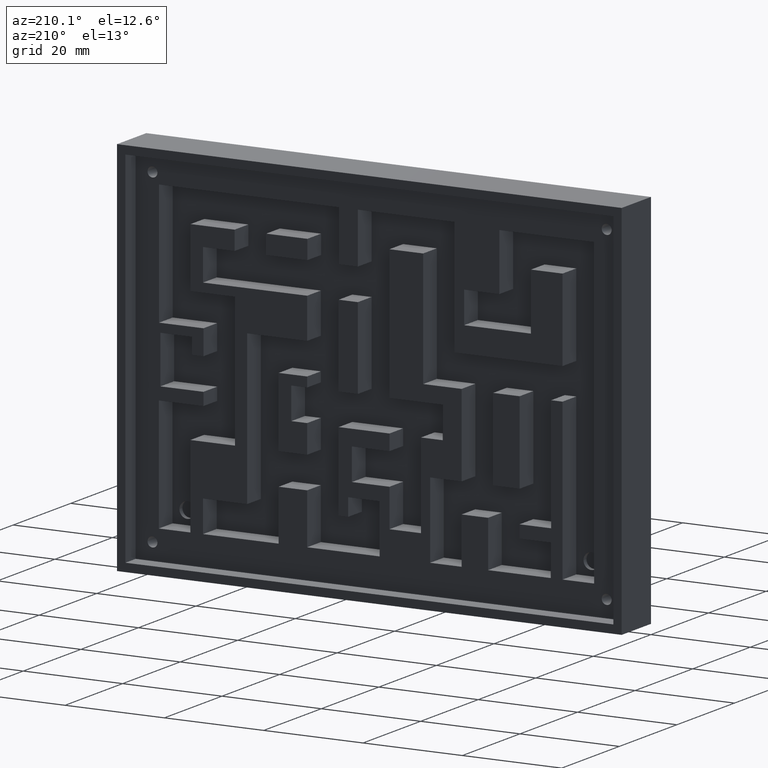
[diagram: clean part render]
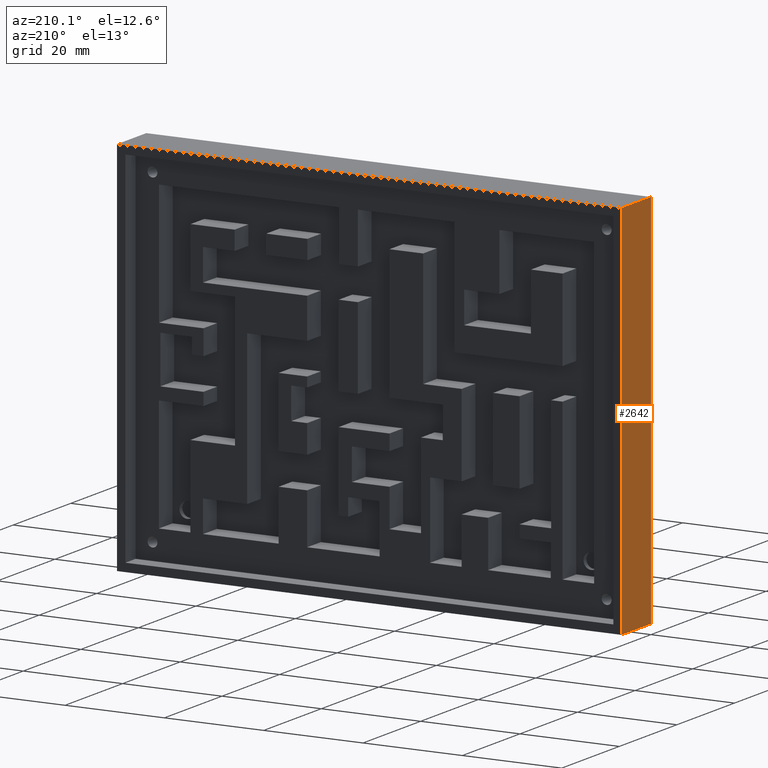
[diagram: same view with one face highlighted and labeled with its STEP entity id]
A machine part, auxiliary view. The second image highlights one B-rep face of the part: STEP entity #2642.
In plain terms, the highlighted planar face has unit normal (-1, 0, 0).
Its self-contained STEP definition (entity closure, byte-faithful):
#178=FACE_OUTER_BOUND('',#325,.T.);
#325=EDGE_LOOP('',(#2363,#2364,#2365,#2366));
#672=LINE('',#4185,#1026);
#680=LINE('',#4200,#1034);
#681=LINE('',#4202,#1035);
#682=LINE('',#4203,#1036);
#1026=VECTOR('',#3438,0.393700787401575);
#1034=VECTOR('',#3450,0.393700787401575);
#1035=VECTOR('',#3453,0.393700787401575);
#1036=VECTOR('',#3454,0.393700787401575);
#1274=VERTEX_POINT('',#4182);
#1275=VERTEX_POINT('',#4184);
#1279=VERTEX_POINT('',#4196);
#1280=VERTEX_POINT('',#4198);
#1636=EDGE_CURVE('',#1274,#1275,#672,.T.);
#1644=EDGE_CURVE('',#1279,#1280,#680,.T.);
#1645=EDGE_CURVE('',#1274,#1279,#681,.T.);
#1646=EDGE_CURVE('',#1275,#1280,#682,.T.);
#2363=ORIENTED_EDGE('',*,*,#1645,.T.);
#2364=ORIENTED_EDGE('',*,*,#1644,.T.);
#2365=ORIENTED_EDGE('',*,*,#1646,.F.);
#2366=ORIENTED_EDGE('',*,*,#1636,.F.);
#2506=PLANE('',#2804);
#2642=ADVANCED_FACE('',(#178),#2506,.T.);
#2804=AXIS2_PLACEMENT_3D('',#4201,#3451,#3452);
#3438=DIRECTION('',(0.,1.,0.));
#3450=DIRECTION('',(0.,1.,0.));
#3451=DIRECTION('center_axis',(-1.,0.,0.));
#3452=DIRECTION('ref_axis',(0.,0.,1.));
#3453=DIRECTION('',(0.,0.,1.));
#3454=DIRECTION('',(0.,0.,1.));
#4182=CARTESIAN_POINT('',(0.,0.,-3.));
#4184=CARTESIAN_POINT('',(0.,0.4,-3.));
#4185=CARTESIAN_POINT('',(0.,0.,-3.));
#4196=CARTESIAN_POINT('',(0.,0.,0.));
#4198=CARTESIAN_POINT('',(0.,0.4,0.));
#4200=CARTESIAN_POINT('',(0.,0.,0.));
#4201=CARTESIAN_POINT('Origin',(0.,0.,-3.));
#4202=CARTESIAN_POINT('',(0.,0.,-3.));
#4203=CARTESIAN_POINT('',(0.,0.4,-3.));